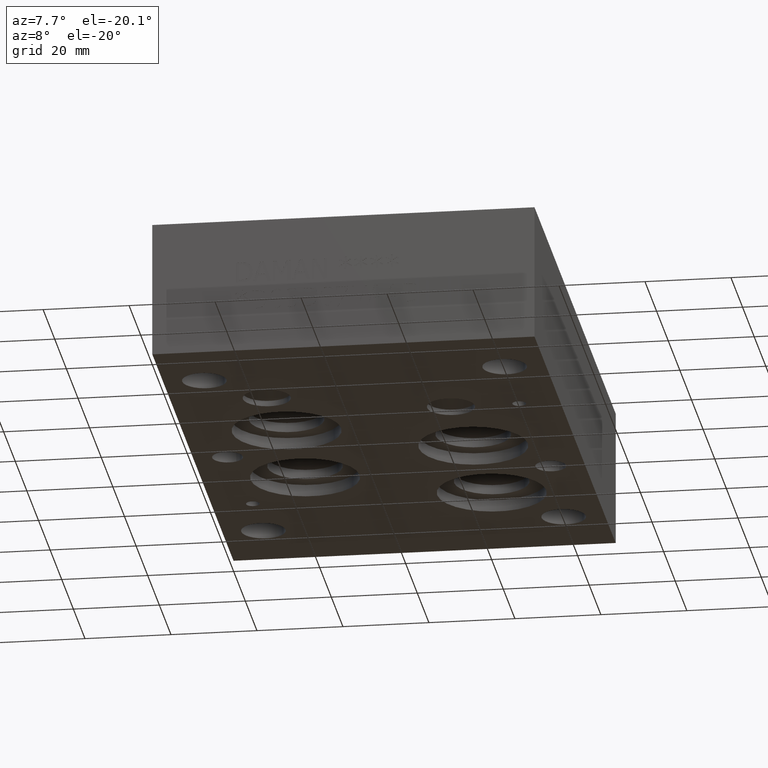
[diagram: clean part render]
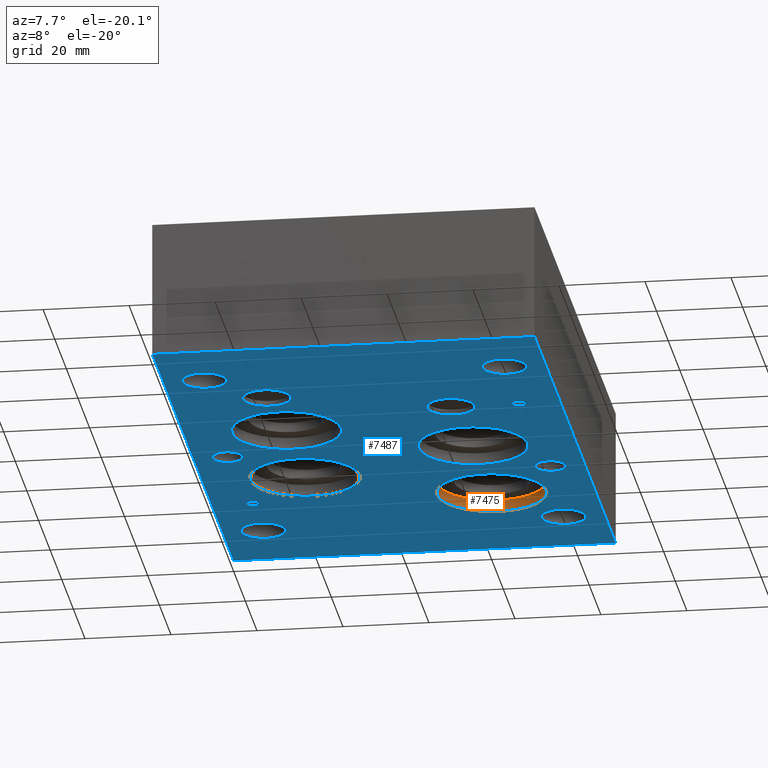
[diagram: same view with the hole feature highlighted: cylindrical wall and planar end face, labeled with their STEP entity ids]
A machine part, auxiliary view. The highlighted faces form one hole feature of diameter 25.4 mm: the cylindrical wall (entity #7475, orange) and its adjacent planar end face (entity #7487, blue) — they share a circular edge in the B-rep.
Wall:
#47=CIRCLE('',#7823,12.7);
#48=CIRCLE('',#7824,12.7);
#119=CYLINDRICAL_SURFACE('',#7822,12.7);
#801=FACE_OUTER_BOUND('',#1228,.T.);
#1228=EDGE_LOOP('',(#6323,#6324,#6325,#6326));
#2046=LINE('',#12387,#2813);
#2813=VECTOR('',#9205,12.7);
#3463=VERTEX_POINT('',#12384);
#3464=VERTEX_POINT('',#12386);
#4437=EDGE_CURVE('',#3463,#3463,#47,.T.);
#4438=EDGE_CURVE('',#3463,#3464,#2046,.T.);
#4439=EDGE_CURVE('',#3464,#3464,#48,.T.);
#6323=ORIENTED_EDGE('',*,*,#4437,.F.);
#6324=ORIENTED_EDGE('',*,*,#4438,.T.);
#6325=ORIENTED_EDGE('',*,*,#4439,.F.);
#6326=ORIENTED_EDGE('',*,*,#4438,.F.);
#7475=ADVANCED_FACE('',(#801),#119,.F.);
#7822=AXIS2_PLACEMENT_3D('',#12383,#9201,#9202);
#7823=AXIS2_PLACEMENT_3D('',#12385,#9203,#9204);
#7824=AXIS2_PLACEMENT_3D('',#12388,#9206,#9207);
#9201=DIRECTION('center_axis',(0.,0.,-1.));
#9202=DIRECTION('ref_axis',(1.,0.,0.));
#9203=DIRECTION('center_axis',(0.,0.,1.));
#9204=DIRECTION('ref_axis',(1.,0.,0.));
#9205=DIRECTION('',(0.,0.,1.));
#9206=DIRECTION('center_axis',(0.,0.,-1.));
#9207=DIRECTION('ref_axis',(1.,0.,0.));
#12383=CARTESIAN_POINT('Origin',(65.1002,102.3874,1.397));
#12384=CARTESIAN_POINT('',(52.4002,102.3874,0.));
#12385=CARTESIAN_POINT('Origin',(65.1002,102.3874,0.));
#12386=CARTESIAN_POINT('',(52.4002,102.3874,2.794));
#12387=CARTESIAN_POINT('',(52.4002,102.3874,1.397));
#12388=CARTESIAN_POINT('Origin',(65.1002,102.3874,2.794));
End face:
#31=CIRCLE('',#7791,5.5626);
#33=CIRCLE('',#7795,5.5626);
#43=CIRCLE('',#7815,12.7);
#45=CIRCLE('',#7819,12.7);
#47=CIRCLE('',#7823,12.7);
#49=CIRCLE('',#7827,12.7);
#52=CIRCLE('',#7833,1.5875);
#54=CIRCLE('',#7837,1.5875);
#56=CIRCLE('',#7841,3.5687);
#58=CIRCLE('',#7845,3.5687);
#59=CIRCLE('',#7847,5.1562);
#60=CIRCLE('',#7848,5.1562);
#61=CIRCLE('',#7849,5.1562);
#62=CIRCLE('',#7850,5.1562);
#63=CIRCLE('',#7851,3.5687);
#64=CIRCLE('',#7852,3.5687);
#65=CIRCLE('',#7853,3.5687);
#66=CIRCLE('',#7854,3.5687);
#429=FACE_BOUND('',#1243,.T.);
#430=FACE_BOUND('',#1244,.T.);
#431=FACE_BOUND('',#1245,.T.);
#432=FACE_BOUND('',#1246,.T.);
#433=FACE_BOUND('',#1247,.T.);
#434=FACE_BOUND('',#1248,.T.);
#435=FACE_BOUND('',#1249,.T.);
#436=FACE_BOUND('',#1250,.T.);
#437=FACE_BOUND('',#1251,.T.);
#438=FACE_BOUND('',#1252,.T.);
#439=FACE_BOUND('',#1253,.T.);
#440=FACE_BOUND('',#1254,.T.);
#441=FACE_BOUND('',#1255,.T.);
#442=FACE_BOUND('',#1256,.T.);
#813=FACE_OUTER_BOUND('',#1242,.T.);
#1242=EDGE_LOOP('',(#6361,#6362,#6363,#6364));
#1243=EDGE_LOOP('',(#6365));
#1244=EDGE_LOOP('',(#6366));
#1245=EDGE_LOOP('',(#6367));
#1246=EDGE_LOOP('',(#6368));
#1247=EDGE_LOOP('',(#6369));
#1248=EDGE_LOOP('',(#6370));
#1249=EDGE_LOOP('',(#6371));
#1250=EDGE_LOOP('',(#6372));
#1251=EDGE_LOOP('',(#6373));
#1252=EDGE_LOOP('',(#6374));
#1253=EDGE_LOOP('',(#6375));
#1254=EDGE_LOOP('',(#6376));
#1255=EDGE_LOOP('',(#6377,#6378,#6379));
#1256=EDGE_LOOP('',(#6380,#6381,#6382));
#1708=LINE('',#10408,#2475);
#2056=LINE('',#12479,#2823);
#2057=LINE('',#12481,#2824);
#2058=LINE('',#12482,#2825);
#2475=VECTOR('',#8593,10.);
#2823=VECTOR('',#9261,10.);
#2824=VECTOR('',#9262,10.);
#2825=VECTOR('',#9263,10.);
#3127=VERTEX_POINT('',#10406);
#3128=VERTEX_POINT('',#10407);
#3443=VERTEX_POINT('',#12320);
#3445=VERTEX_POINT('',#12327);
#3459=VERTEX_POINT('',#12370);
#3461=VERTEX_POINT('',#12377);
#3463=VERTEX_POINT('',#12384);
#3465=VERTEX_POINT('',#12391);
#3469=VERTEX_POINT('',#12403);
#3472=VERTEX_POINT('',#12412);
#3475=VERTEX_POINT('',#12441);
#3476=VERTEX_POINT('',#12443);
#3479=VERTEX_POINT('',#12472);
#3480=VERTEX_POINT('',#12474);
#3481=VERTEX_POINT('',#12478);
#3482=VERTEX_POINT('',#12480);
#3483=VERTEX_POINT('',#12483);
#3484=VERTEX_POINT('',#12485);
#3485=VERTEX_POINT('',#12487);
#3486=VERTEX_POINT('',#12489);
#3487=VERTEX_POINT('',#12491);
#3488=VERTEX_POINT('',#12494);
#3937=EDGE_CURVE('',#3127,#3128,#1708,.T.);
#4409=EDGE_CURVE('',#3443,#3443,#31,.T.);
#4412=EDGE_CURVE('',#3445,#3445,#33,.T.);
#4431=EDGE_CURVE('',#3459,#3459,#43,.T.);
#4434=EDGE_CURVE('',#3461,#3461,#45,.T.);
#4437=EDGE_CURVE('',#3463,#3463,#47,.T.);
#4440=EDGE_CURVE('',#3465,#3465,#49,.T.);
#4445=EDGE_CURVE('',#3469,#3469,#52,.T.);
#4449=EDGE_CURVE('',#3472,#3472,#54,.T.);
#4455=EDGE_CURVE('',#3475,#3476,#56,.T.);
#4460=EDGE_CURVE('',#3479,#3480,#58,.T.);
#4461=EDGE_CURVE('',#3481,#3127,#2056,.T.);
#4462=EDGE_CURVE('',#3482,#3481,#2057,.T.);
#4463=EDGE_CURVE('',#3128,#3482,#2058,.T.);
#4464=EDGE_CURVE('',#3483,#3483,#59,.T.);
#4465=EDGE_CURVE('',#3484,#3484,#60,.T.);
#4466=EDGE_CURVE('',#3485,#3485,#61,.T.);
#4467=EDGE_CURVE('',#3486,#3486,#62,.T.);
#4468=EDGE_CURVE('',#3476,#3487,#63,.T.);
#4469=EDGE_CURVE('',#3487,#3475,#64,.T.);
#4470=EDGE_CURVE('',#3480,#3488,#65,.T.);
#4471=EDGE_CURVE('',#3488,#3479,#66,.T.);
#6361=ORIENTED_EDGE('',*,*,#3937,.F.);
#6362=ORIENTED_EDGE('',*,*,#4461,.F.);
#6363=ORIENTED_EDGE('',*,*,#4462,.F.);
#6364=ORIENTED_EDGE('',*,*,#4463,.F.);
#6365=ORIENTED_EDGE('',*,*,#4409,.T.);
#6366=ORIENTED_EDGE('',*,*,#4412,.T.);
#6367=ORIENTED_EDGE('',*,*,#4431,.T.);
#6368=ORIENTED_EDGE('',*,*,#4434,.T.);
#6369=ORIENTED_EDGE('',*,*,#4437,.T.);
#6370=ORIENTED_EDGE('',*,*,#4440,.T.);
#6371=ORIENTED_EDGE('',*,*,#4445,.T.);
#6372=ORIENTED_EDGE('',*,*,#4449,.T.);
#6373=ORIENTED_EDGE('',*,*,#4464,.T.);
#6374=ORIENTED_EDGE('',*,*,#4465,.T.);
#6375=ORIENTED_EDGE('',*,*,#4466,.T.);
#6376=ORIENTED_EDGE('',*,*,#4467,.T.);
#6377=ORIENTED_EDGE('',*,*,#4455,.T.);
#6378=ORIENTED_EDGE('',*,*,#4468,.T.);
#6379=ORIENTED_EDGE('',*,*,#4469,.T.);
#6380=ORIENTED_EDGE('',*,*,#4460,.T.);
#6381=ORIENTED_EDGE('',*,*,#4470,.T.);
#6382=ORIENTED_EDGE('',*,*,#4471,.T.);
#6819=PLANE('',#7846);
#7487=ADVANCED_FACE('',(#813,#429,#430,#431,#432,#433,#434,#435,#436,#437,
#438,#439,#440,#441,#442),#6819,.F.);
#7791=AXIS2_PLACEMENT_3D('',#12321,#9127,#9128);
#7795=AXIS2_PLACEMENT_3D('',#12328,#9136,#9137);
#7815=AXIS2_PLACEMENT_3D('',#12371,#9185,#9186);
#7819=AXIS2_PLACEMENT_3D('',#12378,#9194,#9195);
#7823=AXIS2_PLACEMENT_3D('',#12385,#9203,#9204);
#7827=AXIS2_PLACEMENT_3D('',#12392,#9212,#9213);
#7833=AXIS2_PLACEMENT_3D('',#12404,#9226,#9227);
#7837=AXIS2_PLACEMENT_3D('',#12413,#9236,#9237);
#7841=AXIS2_PLACEMENT_3D('',#12445,#9247,#9248);
#7845=AXIS2_PLACEMENT_3D('',#12476,#9257,#9258);
#7846=AXIS2_PLACEMENT_3D('',#12477,#9259,#9260);
#7847=AXIS2_PLACEMENT_3D('',#12484,#9264,#9265);
#7848=AXIS2_PLACEMENT_3D('',#12486,#9266,#9267);
#7849=AXIS2_PLACEMENT_3D('',#12488,#9268,#9269);
#7850=AXIS2_PLACEMENT_3D('',#12490,#9270,#9271);
#7851=AXIS2_PLACEMENT_3D('',#12492,#9272,#9273);
#7852=AXIS2_PLACEMENT_3D('',#12493,#9274,#9275);
#7853=AXIS2_PLACEMENT_3D('',#12495,#9276,#9277);
#7854=AXIS2_PLACEMENT_3D('',#12496,#9278,#9279);
#8593=DIRECTION('',(1.,0.,0.));
#9127=DIRECTION('center_axis',(0.,0.,1.));
#9128=DIRECTION('ref_axis',(1.,0.,0.));
#9136=DIRECTION('center_axis',(0.,0.,1.));
#9137=DIRECTION('ref_axis',(1.,0.,0.));
#9185=DIRECTION('center_axis',(0.,0.,1.));
#9186=DIRECTION('ref_axis',(1.,0.,0.));
#9194=DIRECTION('center_axis',(0.,0.,1.));
#9195=DIRECTION('ref_axis',(1.,0.,0.));
#9203=DIRECTION('center_axis',(0.,0.,1.));
#9204=DIRECTION('ref_axis',(1.,0.,0.));
#9212=DIRECTION('center_axis',(0.,0.,1.));
#9213=DIRECTION('ref_axis',(1.,0.,0.));
#9226=DIRECTION('center_axis',(0.,0.,1.));
#9227=DIRECTION('ref_axis',(1.,0.,0.));
#9236=DIRECTION('center_axis',(0.,0.,1.));
#9237=DIRECTION('ref_axis',(1.,0.,0.));
#9247=DIRECTION('center_axis',(0.,0.,1.));
#9248=DIRECTION('ref_axis',(1.,0.,0.));
#9257=DIRECTION('center_axis',(0.,0.,1.));
#9258=DIRECTION('ref_axis',(1.,0.,0.));
#9259=DIRECTION('center_axis',(0.,0.,1.));
#9260=DIRECTION('ref_axis',(1.,0.,0.));
#9261=DIRECTION('',(0.,-1.,0.));
#9262=DIRECTION('',(-1.,0.,0.));
#9263=DIRECTION('',(0.,1.,0.));
#9264=DIRECTION('center_axis',(0.,0.,1.));
#9265=DIRECTION('ref_axis',(1.,0.,0.));
#9266=DIRECTION('center_axis',(0.,0.,1.));
#9267=DIRECTION('ref_axis',(1.,0.,0.));
#9268=DIRECTION('center_axis',(0.,0.,1.));
#9269=DIRECTION('ref_axis',(1.,0.,0.));
#9270=DIRECTION('center_axis',(0.,0.,1.));
#9271=DIRECTION('ref_axis',(1.,0.,0.));
#9272=DIRECTION('center_axis',(0.,0.,1.));
#9273=DIRECTION('ref_axis',(1.,0.,0.));
#9274=DIRECTION('center_axis',(0.,0.,1.));
#9275=DIRECTION('ref_axis',(1.,0.,0.));
#9276=DIRECTION('center_axis',(0.,0.,1.));
#9277=DIRECTION('ref_axis',(1.,0.,0.));
#9278=DIRECTION('center_axis',(0.,0.,1.));
#9279=DIRECTION('ref_axis',(1.,0.,0.));
#10406=CARTESIAN_POINT('',(0.,0.,0.));
#10407=CARTESIAN_POINT('',(88.9,0.,0.));
#10408=CARTESIAN_POINT('',(0.,0.,0.));
#12320=CARTESIAN_POINT('',(57.9628,44.0436,0.));
#12321=CARTESIAN_POINT('Origin',(63.5254,44.0436,0.));
#12327=CARTESIAN_POINT('',(16.6624,32.5374,0.));
#12328=CARTESIAN_POINT('Origin',(22.225,32.5374,0.));
#12370=CARTESIAN_POINT('',(11.1252,86.5124,0.));
#12371=CARTESIAN_POINT('Origin',(23.8252,86.5124,0.));
#12377=CARTESIAN_POINT('',(52.4002,70.6374,0.));
#12378=CARTESIAN_POINT('Origin',(65.1002,70.6374,0.));
#12384=CARTESIAN_POINT('',(52.4002,102.3874,0.));
#12385=CARTESIAN_POINT('Origin',(65.1002,102.3874,0.));
#12391=CARTESIAN_POINT('',(11.1252,54.7624,0.));
#12392=CARTESIAN_POINT('Origin',(23.8252,54.7624,0.));
#12403=CARTESIAN_POINT('',(7.9375,102.3874,0.));
#12404=CARTESIAN_POINT('Origin',(9.525,102.3874,0.));
#12412=CARTESIAN_POINT('',(77.7875,44.0436,0.));
#12413=CARTESIAN_POINT('Origin',(79.375,44.0436,0.));
#12441=CARTESIAN_POINT('',(6.34788199988836,67.4486389997809,0.));
#12443=CARTESIAN_POINT('',(9.53981800011164,73.8325110002191,0.));
#12445=CARTESIAN_POINT('Origin',(7.9502,70.6374,0.));
#12472=CARTESIAN_POINT('',(79.3728819998882,83.3236389997809,0.));
#12474=CARTESIAN_POINT('',(82.5648180001117,89.707511000219,0.));
#12476=CARTESIAN_POINT('Origin',(80.9752,86.5124,0.));
#12477=CARTESIAN_POINT('Origin',(44.45,69.85,0.));
#12478=CARTESIAN_POINT('',(0.,139.7,0.));
#12479=CARTESIAN_POINT('',(0.,139.7,0.));
#12480=CARTESIAN_POINT('',(88.9,139.7,0.));
#12481=CARTESIAN_POINT('',(88.9,139.7,0.));
#12482=CARTESIAN_POINT('',(88.9,0.,0.));
#12483=CARTESIAN_POINT('',(4.3688,120.65,0.));
#12484=CARTESIAN_POINT('Origin',(9.525,120.65,0.));
#12485=CARTESIAN_POINT('',(4.3688,19.05,0.));
#12486=CARTESIAN_POINT('Origin',(9.525,19.05,0.));
#12487=CARTESIAN_POINT('',(74.2188,19.05,0.));
#12488=CARTESIAN_POINT('Origin',(79.375,19.05,0.));
#12489=CARTESIAN_POINT('',(74.2188,120.65,0.));
#12490=CARTESIAN_POINT('Origin',(79.375,120.65,0.));
#12491=CARTESIAN_POINT('',(4.3688,70.64375,1.77635683940025E-14));
#12492=CARTESIAN_POINT('Origin',(7.9375,70.64375,0.));
#12493=CARTESIAN_POINT('Origin',(7.9375,70.64375,0.));
#12494=CARTESIAN_POINT('',(77.3938,86.51875,1.77635683940025E-14));
#12495=CARTESIAN_POINT('Origin',(80.9625,86.51875,0.));
#12496=CARTESIAN_POINT('Origin',(80.9625,86.51875,0.));